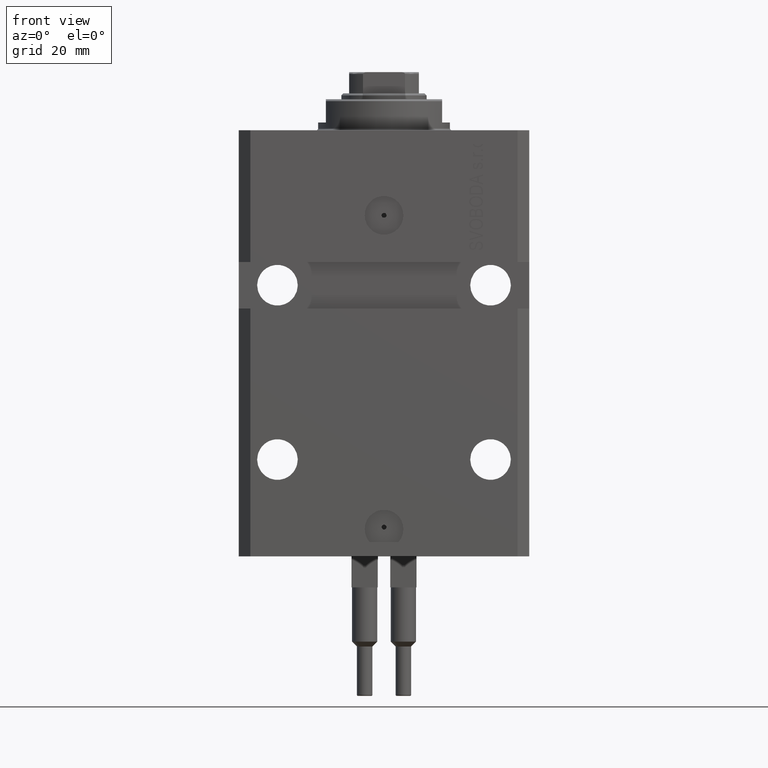
[diagram: clean part render]
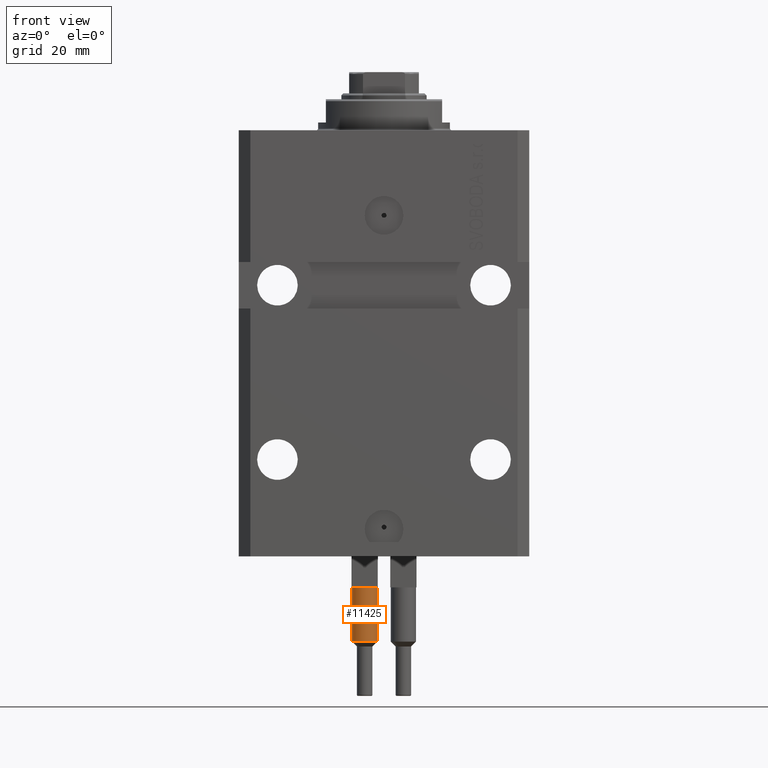
[diagram: same view with one face highlighted and labeled with its STEP entity id]
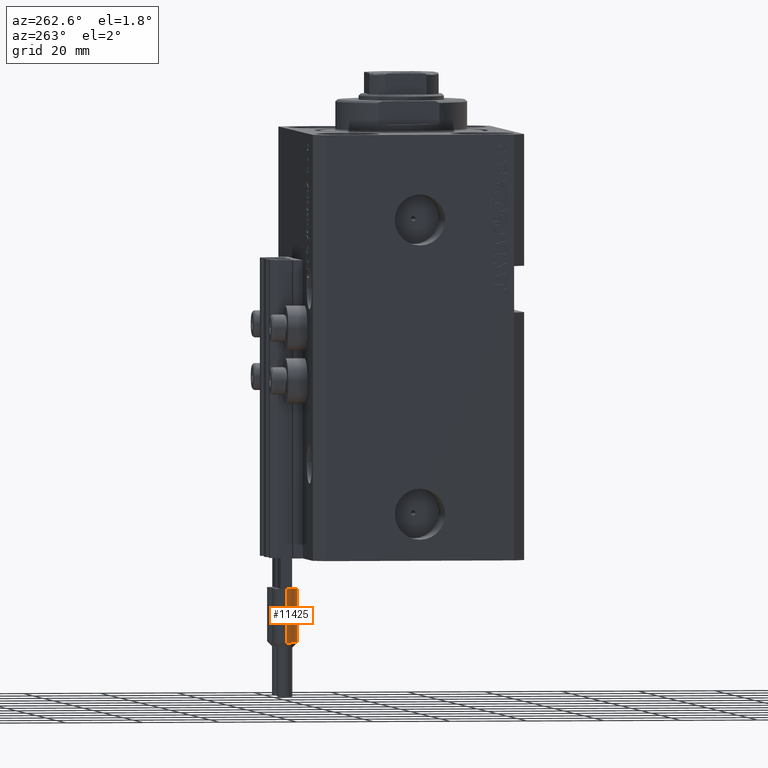
[diagram: same view with one face highlighted and labeled with its STEP entity id]
A machine part, front view. The second image highlights one B-rep face of the part: STEP entity #11425.
A second angle (auxiliary view) of the same face is appended — the face is thin or edge-on in the first view.
In plain terms, the highlighted cylindrical surface (edge-blend (fillet) strip) has radius 3.25 mm, axis along (0, 0, 1).
Its self-contained STEP definition (entity closure, byte-faithful):
#2284 = EDGE_CURVE ( 'NONE', #40335, #33418, #11415, .T. ) ;
#2500 = CARTESIAN_POINT ( 'NONE',  ( -2.883140648667699146, -1.500000000000000000, 40.00000000000000000 ) ) ;
#2910 = DIRECTION ( 'NONE',  ( 0.000000000000000000, 0.000000000000000000, 1.000000000000000000 ) ) ;
#4597 = EDGE_CURVE ( 'NONE', #40335, #34632, #20285, .T. ) ;
#5341 = CARTESIAN_POINT ( 'NONE',  ( 0.000000000000000000, 0.000000000000000000, 40.00000000000000000 ) ) ;
#6220 = DIRECTION ( 'NONE',  ( -0.000000000000000000, -0.000000000000000000, -1.000000000000000000 ) ) ;
#6456 = CARTESIAN_POINT ( 'NONE',  ( 0.000000000000000000, 0.000000000000000000, 40.00000000000000000 ) ) ;
#6469 = ORIENTED_EDGE ( 'NONE', *, *, #4597, .F. ) ;
#7181 = ORIENTED_EDGE ( 'NONE', *, *, #20601, .T. ) ;
#7541 = DIRECTION ( 'NONE',  ( -0.000000000000000000, -0.000000000000000000, -1.000000000000000000 ) ) ;
#8842 = ORIENTED_EDGE ( 'NONE', *, *, #2284, .T. ) ;
#9083 = CARTESIAN_POINT ( 'NONE',  ( 3.250000000000000444, 3.980102097228898231E-16, 56.00000000000000000 ) ) ;
#9637 = CARTESIAN_POINT ( 'NONE',  ( 0.000000000000000000, 0.000000000000000000, 56.00000000000000000 ) ) ;
#9868 = DIRECTION ( 'NONE',  ( 1.000000000000000000, 0.000000000000000000, 0.000000000000000000 ) ) ;
#9983 = EDGE_CURVE ( 'NONE', #46329, #47250, #25538, .T. ) ;
#10594 = VECTOR ( 'NONE', #42677, 1000.000000000000000 ) ;
#11415 = CIRCLE ( 'NONE', #19198, 3.250000000000000444 ) ;
#11425 = ADVANCED_FACE ( 'NONE', ( #39584 ), #43224, .T. ) ;
#11787 = VECTOR ( 'NONE', #7541, 1000.000000000000000 ) ;
#12355 = ORIENTED_EDGE ( 'NONE', *, *, #26169, .T. ) ;
#15668 = CARTESIAN_POINT ( 'NONE',  ( 0.000000000000000000, 0.000000000000000000, 53.99999999999998579 ) ) ;
#19198 = AXIS2_PLACEMENT_3D ( 'NONE', #15668, #33728, #22251 ) ;
#20190 = DIRECTION ( 'NONE',  ( 1.000000000000000000, 0.000000000000000000, 0.000000000000000000 ) ) ;
#20198 = CARTESIAN_POINT ( 'NONE',  ( -3.250000000000000444, 0.000000000000000000, 53.99999999999998579 ) ) ;
#20285 = LINE ( 'NONE', #9083, #10594 ) ;
#20601 = EDGE_CURVE ( 'NONE', #33418, #29413, #20685, .T. ) ;
#20685 = LINE ( 'NONE', #32147, #11787 ) ;
#22251 = DIRECTION ( 'NONE',  ( 1.000000000000000000, 0.000000000000000000, 0.000000000000000000 ) ) ;
#22281 = EDGE_CURVE ( 'NONE', #29413, #46329, #22724, .T. ) ;
#22724 = CIRCLE ( 'NONE', #29759, 3.250000000000000444 ) ;
#24529 = AXIS2_PLACEMENT_3D ( 'NONE', #5341, #35061, #20190 ) ;
#24718 = DIRECTION ( 'NONE',  ( -1.000000000000000000, 0.000000000000000000, 0.000000000000000000 ) ) ;
#25521 = ORIENTED_EDGE ( 'NONE', *, *, #22281, .T. ) ;
#25538 = CIRCLE ( 'NONE', #30981, 3.250000000000000444 ) ;
#26169 = EDGE_CURVE ( 'NONE', #47250, #34632, #33118, .T. ) ;
#26371 = CARTESIAN_POINT ( 'NONE',  ( -3.250000000000000444, 0.000000000000000000, 40.00000000000000000 ) ) ;
#26756 = EDGE_LOOP ( 'NONE', ( #6469, #8842, #7181, #25521, #45647, #12355 ) ) ;
#29413 = VERTEX_POINT ( 'NONE', #26371 ) ;
#29483 = AXIS2_PLACEMENT_3D ( 'NONE', #9637, #6220, #24718 ) ;
#29759 = AXIS2_PLACEMENT_3D ( 'NONE', #6456, #42986, #9868 ) ;
#30981 = AXIS2_PLACEMENT_3D ( 'NONE', #32151, #2910, #32633 ) ;
#31317 = CARTESIAN_POINT ( 'NONE',  ( 3.250000000000000444, 3.980102097228898231E-16, 40.00000000000000000 ) ) ;
#32147 = CARTESIAN_POINT ( 'NONE',  ( -3.250000000000000444, 0.000000000000000000, 56.00000000000000000 ) ) ;
#32151 = CARTESIAN_POINT ( 'NONE',  ( 0.000000000000000000, 0.000000000000000000, 40.00000000000000000 ) ) ;
#32633 = DIRECTION ( 'NONE',  ( 1.000000000000000000, 0.000000000000000000, 0.000000000000000000 ) ) ;
#33118 = CIRCLE ( 'NONE', #24529, 3.250000000000000444 ) ;
#33418 = VERTEX_POINT ( 'NONE', #20198 ) ;
#33728 = DIRECTION ( 'NONE',  ( 0.000000000000000000, 0.000000000000000000, -1.000000000000000000 ) ) ;
#34632 = VERTEX_POINT ( 'NONE', #31317 ) ;
#35061 = DIRECTION ( 'NONE',  ( 0.000000000000000000, 0.000000000000000000, 1.000000000000000000 ) ) ;
#39584 = FACE_OUTER_BOUND ( 'NONE', #26756, .T. ) ;
#40335 = VERTEX_POINT ( 'NONE', #46370 ) ;
#42677 = DIRECTION ( 'NONE',  ( -0.000000000000000000, -0.000000000000000000, -1.000000000000000000 ) ) ;
#42986 = DIRECTION ( 'NONE',  ( 0.000000000000000000, 0.000000000000000000, 1.000000000000000000 ) ) ;
#43224 = CYLINDRICAL_SURFACE ( 'NONE', #29483, 3.250000000000000444 ) ;
#45647 = ORIENTED_EDGE ( 'NONE', *, *, #9983, .T. ) ;
#46329 = VERTEX_POINT ( 'NONE', #2500 ) ;
#46370 = CARTESIAN_POINT ( 'NONE',  ( 3.250000000000000444, 3.980102097228898231E-16, 53.99999999999998579 ) ) ;
#47250 = VERTEX_POINT ( 'NONE', #47806 ) ;
#47806 = CARTESIAN_POINT ( 'NONE',  ( 2.883140648667699146, -1.500000000000000000, 40.00000000000000000 ) ) ;